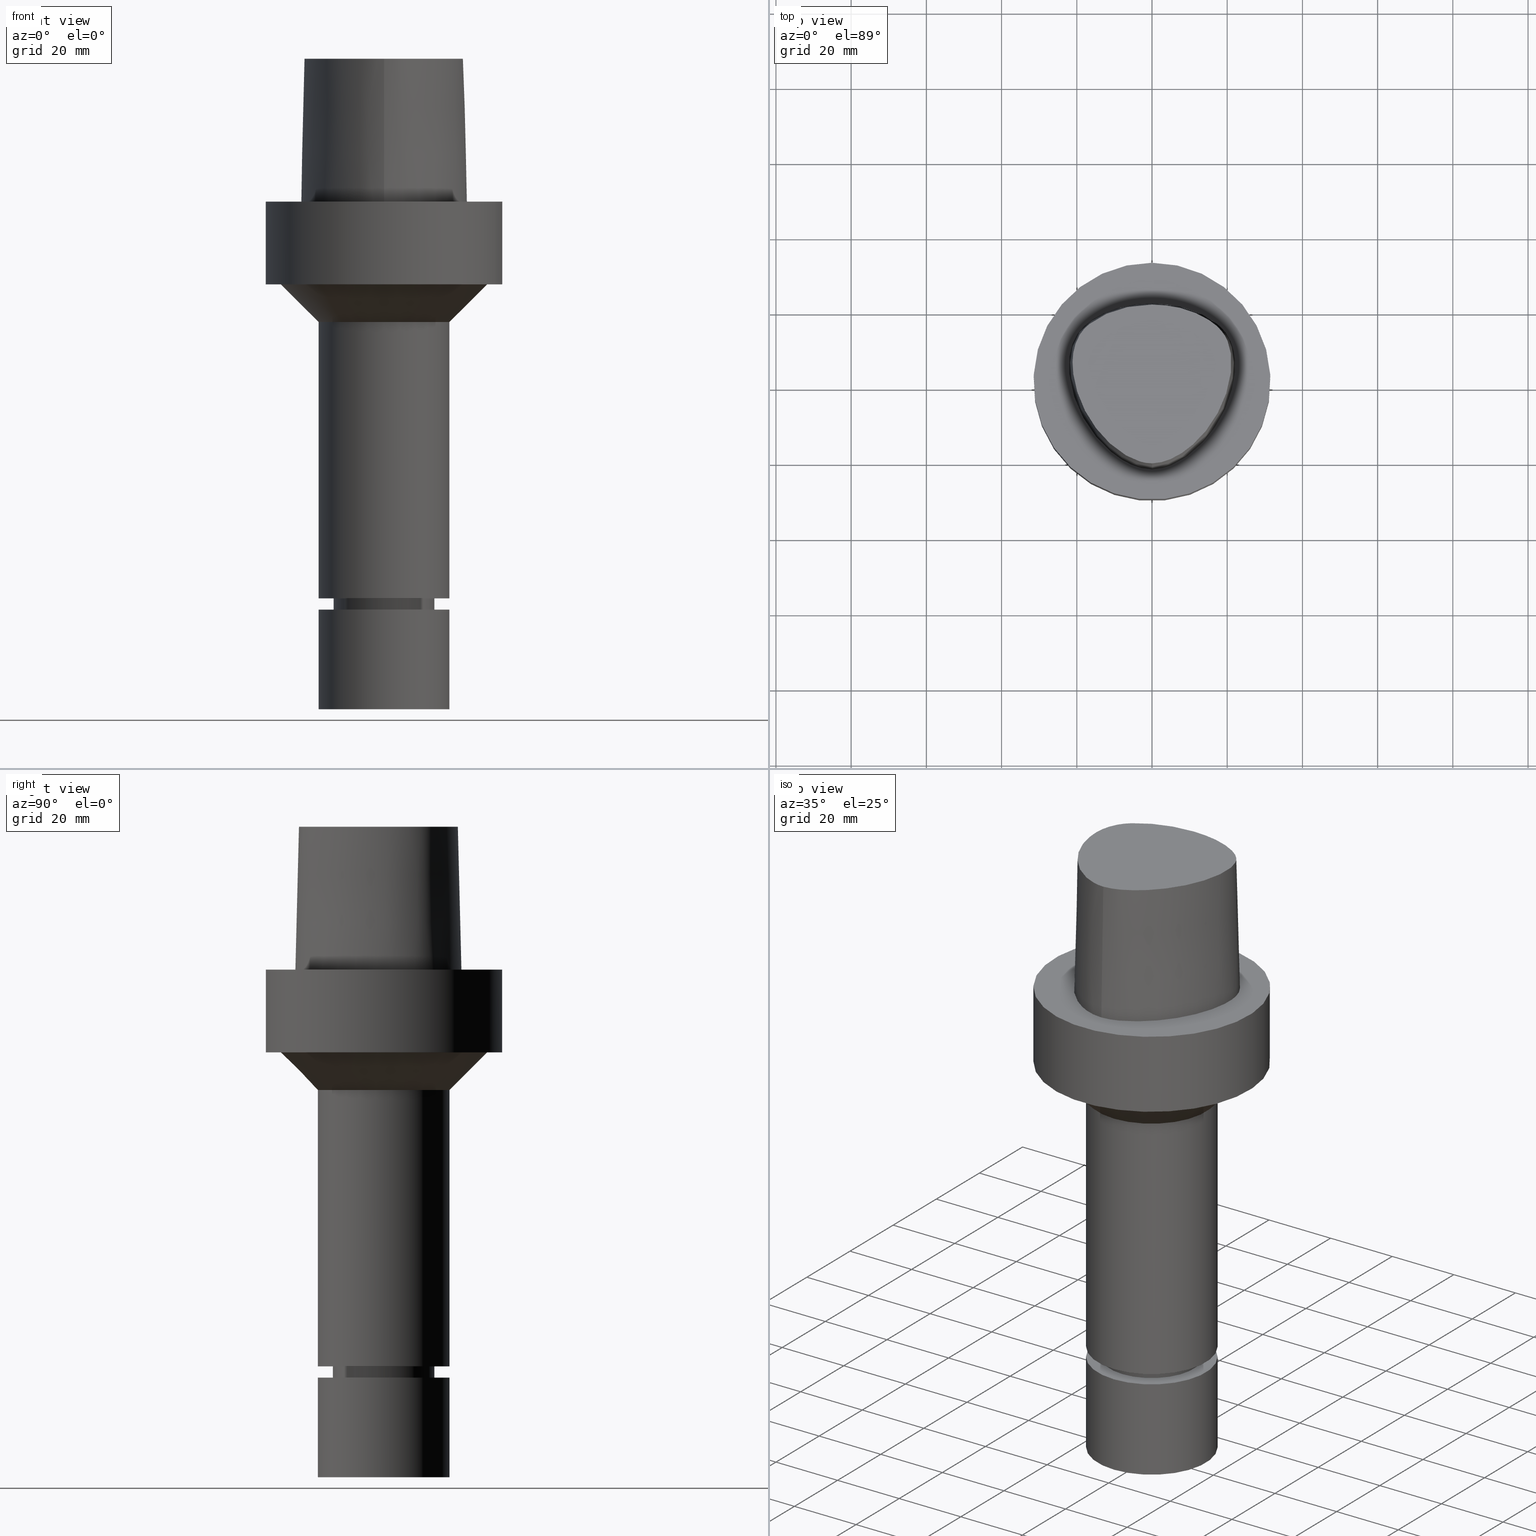
[diagram: canonical four-view strip — front | top / right | iso, engineering-drawing reading convention]
A machine part, canonical four-view strip (front | top / right | iso — engineering-drawing reading convention). The complete STEP part file that produces these views, byte-faithful:
ISO-10303-21;
HEADER;
FILE_DESCRIPTION((''),'1');
FILE_NAME('V:/90_\X2\53D65F9730C730FC30BF\X0\/00_\X2\6DE18DEF30C730FC30BF\X0\/ALL/CAPTO-BKUS\X2\52A05DE556F3\X0\_201801/C6-MEGAER/C6-MEGAER20-135NL.stp','2018-02-01T08:07:44',(''),(''),'Spatial Interop R21 SP3','Kubotek KeyCreator 2011 V10.0.2 (22737)',' ');
FILE_SCHEMA(('automotive_design'));
ENDSEC;
DATA;
#1=MECHANICAL_DESIGN_GEOMETRIC_PRESENTATION_REPRESENTATION(' ',(#14,#15,#16,#17,#18,#19,#20,#21,#22,#23,#24,#25,#26,#27,#28,#29,#30,#31,#32,#33,#34,#35,#36,#37,#38,#39,#40,#41,#42,#43,#44,#45,#46,#47,#48,#49,#50,#51,#52,#53),#10);
#2=PRODUCT_DEFINITION_CONTEXT('',#54,'design');
#3=APPLICATION_PROTOCOL_DEFINITION('INTERNATIONAL STANDARD','automotive_design',1994,#54);
#4=PRODUCT_CATEGORY_RELATIONSHIP('NONE','NONE',#55,#56);
#5=SHAPE_DEFINITION_REPRESENTATION(#57,#58);
#6=PRODUCT_DEFINITION_CONTEXT('',#59,'design');
#7=APPLICATION_PROTOCOL_DEFINITION('INTERNATIONAL STANDARD','automotive_design',1994,#59);
#8=PRODUCT_CATEGORY_RELATIONSHIP('NONE','NONE',#60,#61);
#9=SHAPE_DEFINITION_REPRESENTATION(#62,#63);
#10= (GEOMETRIC_REPRESENTATION_CONTEXT(3)GLOBAL_UNCERTAINTY_ASSIGNED_CONTEXT((#66))GLOBAL_UNIT_ASSIGNED_CONTEXT((#68,#69,#70))REPRESENTATION_CONTEXT('NONE','WORKSPACE'));
#14=STYLED_ITEM('',(#72),#73);
#15=STYLED_ITEM('',(#74,#75),#76);
#16=STYLED_ITEM('',(#77),#78);
#17=STYLED_ITEM('',(#79),#80);
#18=STYLED_ITEM('',(#81),#82);
#19=STYLED_ITEM('',(#83),#84);
#20=STYLED_ITEM('',(#85,#86),#87);
#21=STYLED_ITEM('',(#88,#89),#90);
#22=STYLED_ITEM('',(#91),#92);
#23=STYLED_ITEM('',(#93),#94);
#24=STYLED_ITEM('',(#95),#96);
#25=STYLED_ITEM('',(#97,#98),#99);
#26=STYLED_ITEM('',(#100),#101);
#27=STYLED_ITEM('',(#102,#103),#104);
#28=STYLED_ITEM('',(#105,#106),#107);
#29=STYLED_ITEM('',(#108,#109),#110);
#30=STYLED_ITEM('',(#111,#112),#113);
#31=STYLED_ITEM('',(#114,#115),#116);
#32=STYLED_ITEM('',(#117),#118);
#33=STYLED_ITEM('',(#119,#120),#121);
#34=STYLED_ITEM('',(#122),#123);
#35=STYLED_ITEM('',(#124),#125);
#36=STYLED_ITEM('',(#126),#127);
#37=STYLED_ITEM('',(#128,#129),#130);
#38=STYLED_ITEM('',(#131,#132),#133);
#39=STYLED_ITEM('',(#134,#135),#136);
#40=STYLED_ITEM('',(#137),#138);
#41=STYLED_ITEM('',(#139),#140);
#42=STYLED_ITEM('',(#141,#142),#143);
#43=STYLED_ITEM('',(#144,#145),#146);
#44=STYLED_ITEM('',(#147),#148);
#45=STYLED_ITEM('',(#149,#150),#151);
#46=STYLED_ITEM('',(#152),#153);
#47=STYLED_ITEM('',(#154,#155),#156);
#48=STYLED_ITEM('',(#157,#158),#159);
#49=STYLED_ITEM('',(#160),#161);
#50=STYLED_ITEM('',(#162),#163);
#51=STYLED_ITEM('',(#164,#165),#166);
#52=STYLED_ITEM('',(#167,#168),#169);
#53=STYLED_ITEM('',(#170),#171);
#54=APPLICATION_CONTEXT(' ');
#55=PRODUCT_CATEGORY('part','NONE');
#56=PRODUCT_RELATED_PRODUCT_CATEGORY('detail',' ',(#172));
#57=PRODUCT_DEFINITION_SHAPE('NONE','NONE',#173);
#58=ADVANCED_BREP_SHAPE_REPRESENTATION('Unnamed[1]',(#169,#174),#10);
#59=APPLICATION_CONTEXT(' ');
#60=PRODUCT_CATEGORY('part','NONE');
#61=PRODUCT_RELATED_PRODUCT_CATEGORY('detail',' ',(#175));
#62=PRODUCT_DEFINITION_SHAPE('NONE','NONE',#176);
#63=ADVANCED_BREP_SHAPE_REPRESENTATION('Unnamed[1]',(#136,#177),#10);
#66=UNCERTAINTY_MEASURE_WITH_UNIT(LENGTH_MEASURE(1.0E-006),#68,'','');
#68= (CONVERSION_BASED_UNIT('MILLIMETRE',#180)LENGTH_UNIT()NAMED_UNIT(#183));
#69= (NAMED_UNIT(#185)PLANE_ANGLE_UNIT()SI_UNIT($,.RADIAN.));
#70= (NAMED_UNIT(#185)SOLID_ANGLE_UNIT()SI_UNIT($,.STERADIAN.));
#72=PRESENTATION_STYLE_ASSIGNMENT((#191));
#73=EDGE_CURVE('Unnamed[1]',#192,#193,#194,.T.);
#74=PRESENTATION_STYLE_ASSIGNMENT((#195));
#75=PRESENTATION_STYLE_ASSIGNMENT((#196));
#76=ADVANCED_FACE('Unnamed[1]',(#197),#198,.T.);
#77=PRESENTATION_STYLE_ASSIGNMENT((#199));
#78=EDGE_CURVE('Unnamed[1]',#200,#200,#201,.T.);
#79=PRESENTATION_STYLE_ASSIGNMENT((#202));
#80=EDGE_CURVE('Unnamed[1]',#203,#203,#204,.T.);
#81=PRESENTATION_STYLE_ASSIGNMENT((#205));
#82=EDGE_CURVE('Unnamed[1]',#192,#206,#207,.T.);
#83=PRESENTATION_STYLE_ASSIGNMENT((#208));
#84=EDGE_CURVE('Unnamed[1]',#209,#209,#210,.T.);
#85=PRESENTATION_STYLE_ASSIGNMENT((#211));
#86=PRESENTATION_STYLE_ASSIGNMENT((#212));
#87=ADVANCED_FACE('Unnamed[1]',(#213),#214,.T.);
#88=PRESENTATION_STYLE_ASSIGNMENT((#215));
#89=PRESENTATION_STYLE_ASSIGNMENT((#216));
#90=ADVANCED_FACE('Unnamed[1]',(#217,#218),#219,.T.);
#91=PRESENTATION_STYLE_ASSIGNMENT((#220));
#92=EDGE_CURVE('Unnamed[1]',#221,#192,#222,.T.);
#93=PRESENTATION_STYLE_ASSIGNMENT((#223));
#94=EDGE_CURVE('Unnamed[1]',#206,#193,#224,.T.);
#95=PRESENTATION_STYLE_ASSIGNMENT((#225));
#96=EDGE_CURVE('Unnamed[1]',#226,#226,#227,.T.);
#97=PRESENTATION_STYLE_ASSIGNMENT((#228));
#98=PRESENTATION_STYLE_ASSIGNMENT((#229));
#99=ADVANCED_FACE('Unnamed[1]',(#230,#231),#232,.T.);
#100=PRESENTATION_STYLE_ASSIGNMENT((#233));
#101=EDGE_CURVE('Unnamed[1]',#234,#234,#235,.T.);
#102=PRESENTATION_STYLE_ASSIGNMENT((#236));
#103=PRESENTATION_STYLE_ASSIGNMENT((#237));
#104=ADVANCED_FACE('Unnamed[1]',(#238,#239),#240,.T.);
#105=PRESENTATION_STYLE_ASSIGNMENT((#241));
#106=PRESENTATION_STYLE_ASSIGNMENT((#242));
#107=ADVANCED_FACE('Unnamed[1]',(#243,#244),#245,.T.);
#108=PRESENTATION_STYLE_ASSIGNMENT((#246));
#109=PRESENTATION_STYLE_ASSIGNMENT((#247));
#110=ADVANCED_FACE('Unnamed[1]',(#248),#249,.T.);
#111=PRESENTATION_STYLE_ASSIGNMENT((#250));
#112=PRESENTATION_STYLE_ASSIGNMENT((#251));
#113=ADVANCED_FACE('Unnamed[1]',(#252,#253),#254,.T.);
#114=PRESENTATION_STYLE_ASSIGNMENT((#255));
#115=PRESENTATION_STYLE_ASSIGNMENT((#256));
#116=ADVANCED_FACE('Unnamed[1]',(#257,#258),#259,.T.);
#117=PRESENTATION_STYLE_ASSIGNMENT((#260));
#118=EDGE_CURVE('Unnamed[1]',#261,#261,#262,.T.);
#119=PRESENTATION_STYLE_ASSIGNMENT((#263));
#120=PRESENTATION_STYLE_ASSIGNMENT((#264));
#121=ADVANCED_FACE('Unnamed[1]',(#265,#266),#267,.T.);
#122=PRESENTATION_STYLE_ASSIGNMENT((#268));
#123=EDGE_CURVE('Unnamed[1]',#269,#206,#270,.T.);
#124=PRESENTATION_STYLE_ASSIGNMENT((#271));
#125=EDGE_CURVE('Unnamed[1]',#272,#272,#273,.T.);
#126=PRESENTATION_STYLE_ASSIGNMENT((#274));
#127=EDGE_CURVE('Unnamed[1]',#275,#275,#276,.T.);
#128=PRESENTATION_STYLE_ASSIGNMENT((#277));
#129=PRESENTATION_STYLE_ASSIGNMENT((#278));
#130=ADVANCED_FACE('Unnamed[1]',(#279),#280,.T.);
#131=PRESENTATION_STYLE_ASSIGNMENT((#281));
#132=PRESENTATION_STYLE_ASSIGNMENT((#282));
#133=ADVANCED_FACE('Unnamed[1]',(#283,#284),#285,.T.);
#134=PRESENTATION_STYLE_ASSIGNMENT((#286));
#135=PRESENTATION_STYLE_ASSIGNMENT((#287));
#136=MANIFOLD_SOLID_BREP('Unnamed[1]',#288);
#137=PRESENTATION_STYLE_ASSIGNMENT((#289));
#138=EDGE_CURVE('Unnamed[1]',#290,#290,#291,.T.);
#139=PRESENTATION_STYLE_ASSIGNMENT((#292));
#140=EDGE_CURVE('Unnamed[1]',#293,#293,#294,.T.);
#141=PRESENTATION_STYLE_ASSIGNMENT((#295));
#142=PRESENTATION_STYLE_ASSIGNMENT((#296));
#143=ADVANCED_FACE('Unnamed[1]',(#297),#298,.T.);
#144=PRESENTATION_STYLE_ASSIGNMENT((#299));
#145=PRESENTATION_STYLE_ASSIGNMENT((#300));
#146=ADVANCED_FACE('Unnamed[1]',(#301,#302),#303,.T.);
#147=PRESENTATION_STYLE_ASSIGNMENT((#304));
#148=EDGE_CURVE('Unnamed[1]',#305,#305,#306,.T.);
#149=PRESENTATION_STYLE_ASSIGNMENT((#307));
#150=PRESENTATION_STYLE_ASSIGNMENT((#308));
#151=ADVANCED_FACE('Unnamed[1]',(#309),#310,.T.);
#152=PRESENTATION_STYLE_ASSIGNMENT((#311));
#153=EDGE_CURVE('Unnamed[1]',#192,#221,#312,.T.);
#154=PRESENTATION_STYLE_ASSIGNMENT((#313));
#155=PRESENTATION_STYLE_ASSIGNMENT((#314));
#156=ADVANCED_FACE('Unnamed[1]',(#315,#316),#317,.T.);
#157=PRESENTATION_STYLE_ASSIGNMENT((#318));
#158=PRESENTATION_STYLE_ASSIGNMENT((#319));
#159=ADVANCED_FACE('Unnamed[1]',(#320,#321),#322,.T.);
#160=PRESENTATION_STYLE_ASSIGNMENT((#323));
#161=EDGE_CURVE('Unnamed[1]',#193,#269,#324,.T.);
#162=PRESENTATION_STYLE_ASSIGNMENT((#325));
#163=EDGE_CURVE('Unnamed[1]',#221,#269,#326,.T.);
#164=PRESENTATION_STYLE_ASSIGNMENT((#327));
#165=PRESENTATION_STYLE_ASSIGNMENT((#328));
#166=ADVANCED_FACE('Unnamed[1]',(#329),#330,.T.);
#167=PRESENTATION_STYLE_ASSIGNMENT((#331));
#168=PRESENTATION_STYLE_ASSIGNMENT((#332));
#169=MANIFOLD_SOLID_BREP('Unnamed[1]',#333);
#170=PRESENTATION_STYLE_ASSIGNMENT((#334));
#171=EDGE_CURVE('Unnamed[1]',#335,#335,#336,.T.);
#172=PRODUCT('Unnamed[1]','Unnamed[1]','PART-Unnamed[1]-DESC',(#337));
#173=PRODUCT_DEFINITION('NONE','NONE',#338,#2);
#174=AXIS2_PLACEMENT_3D('',#339,#340,#341);
#175=PRODUCT('Unnamed[1]','Unnamed[1]','PART-Unnamed[1]-DESC',(#342));
#176=PRODUCT_DEFINITION('NONE','NONE',#343,#6);
#177=AXIS2_PLACEMENT_3D('',#344,#345,#346);
#180=LENGTH_MEASURE_WITH_UNIT(LENGTH_MEASURE(1.0),#347);
#183=DIMENSIONAL_EXPONENTS(1.0,0.0,0.0,0.0,0.0,0.0,0.0);
#185=DIMENSIONAL_EXPONENTS(0.0,0.0,0.0,0.0,0.0,0.0,0.0);
#191=CURVE_STYLE('',#348,POSITIVE_LENGTH_MEASURE(1000.0),#349);
#192=VERTEX_POINT('',#350);
#193=VERTEX_POINT('',#351);
#194=LINE('',#352,#353);
#195=SURFACE_STYLE_USAGE(.BOTH.,#354);
#196=CURVE_STYLE('',#355,POSITIVE_LENGTH_MEASURE(1000.0),#356);
#197=FACE_OUTER_BOUND('',#357,.T.);
#198=PLANE('',#358);
#199=CURVE_STYLE('',#359,POSITIVE_LENGTH_MEASURE(1000.0),#360);
#200=VERTEX_POINT('',#361);
#201=CIRCLE('',#362,17.5);
#202=CURVE_STYLE('',#363,POSITIVE_LENGTH_MEASURE(1000.0),#364);
#203=VERTEX_POINT('',#365);
#204=CIRCLE('',#366,27.5000000000006);
#205=CURVE_STYLE('',#367,POSITIVE_LENGTH_MEASURE(1000.0),#368);
#206=VERTEX_POINT('',#369);
#207=LINE('',#370,#371);
#208=CURVE_STYLE('',#372,POSITIVE_LENGTH_MEASURE(1000.0),#373);
#209=VERTEX_POINT('',#374);
#210=CIRCLE('',#375,31.5);
#211=SURFACE_STYLE_USAGE(.BOTH.,#376);
#212=CURVE_STYLE('',#377,POSITIVE_LENGTH_MEASURE(1000.0),#378);
#213=FACE_OUTER_BOUND('',#379,.T.);
#214=PLANE('',#380);
#215=SURFACE_STYLE_USAGE(.BOTH.,#381);
#216=CURVE_STYLE('',#382,POSITIVE_LENGTH_MEASURE(1000.0),#383);
#217=FACE_BOUND('',#384,.T.);
#218=FACE_OUTER_BOUND('',#385,.T.);
#219=PLANE('',#386);
#220=CURVE_STYLE('',#387,POSITIVE_LENGTH_MEASURE(1000.0),#388);
#221=VERTEX_POINT('',#389);
#222=B_SPLINE_CURVE_WITH_KNOTS('',3,(#390,#391,#392,#393,#394,#395,#396,#397,#398,#399,#400,#401,#402,#403,#404,#405),.UNSPECIFIED.,.F.,.F.,(4,1,1,1,1,1,1,1,1,1,1,1,1,4),(6.61513393087476,6.99917207152274,7.48193246986995,7.96289324787093,8.45540287038584,9.10291653679981,9.67129810936083,10.1618749681153,10.6358867802489,11.1080734988593,11.6043706019633,12.09451993853,12.6985979284494,13.2302678617486),.UNSPECIFIED.);
#223=CURVE_STYLE('',#406,POSITIVE_LENGTH_MEASURE(1000.0),#407);
#224=CIRCLE('',#408,0.949936168436318);
#225=CURVE_STYLE('',#409,POSITIVE_LENGTH_MEASURE(1000.0),#410);
#226=VERTEX_POINT('',#411);
#227=CIRCLE('',#412,17.4999999999995);
#228=SURFACE_STYLE_USAGE(.BOTH.,#413);
#229=CURVE_STYLE('',#414,POSITIVE_LENGTH_MEASURE(1000.0),#415);
#230=FACE_BOUND('',#416,.T.);
#231=FACE_BOUND('',#417,.T.);
#232=CYLINDRICAL_SURFACE('',#418,13.4999999999956);
#233=CURVE_STYLE('',#419,POSITIVE_LENGTH_MEASURE(1000.0),#420);
#234=VERTEX_POINT('',#421);
#235=CIRCLE('',#422,31.5);
#236=SURFACE_STYLE_USAGE(.BOTH.,#423);
#237=CURVE_STYLE('',#424,POSITIVE_LENGTH_MEASURE(1000.0),#425);
#238=FACE_BOUND('',#426,.T.);
#239=FACE_BOUND('',#427,.T.);
#240=CYLINDRICAL_SURFACE('',#428,12.4999999999999);
#241=SURFACE_STYLE_USAGE(.BOTH.,#429);
#242=CURVE_STYLE('',#430,POSITIVE_LENGTH_MEASURE(1000.0),#431);
#243=FACE_BOUND('',#432,.T.);
#244=FACE_BOUND('',#433,.T.);
#245=CYLINDRICAL_SURFACE('',#434,31.5);
#246=SURFACE_STYLE_USAGE(.BOTH.,#435);
#247=CURVE_STYLE('',#436,POSITIVE_LENGTH_MEASURE(1000.0),#437);
#248=FACE_OUTER_BOUND('',#438,.T.);
#249=B_SPLINE_SURFACE_WITH_KNOTS('',3,3,((#439,#440,#441,#442),(#443,#444,#445,#446),(#447,#448,#449,#450),(#451,#452,#453,#454),(#455,#456,#457,#458),(#459,#460,#461,#462),(#463,#464,#465,#466),(#467,#468,#469,#470),(#471,#472,#473,#474),(#475,#476,#477,#478),(#479,#480,#481,#482),(#483,#484,#485,#486),(#487,#488,#489,#490),(#491,#492,#493,#494),(#495,#496,#497,#498),(#499,#500,#501,#502),(#503,#504,#505,#506)),.UNSPECIFIED.,.F.,.F.,.F.,(4,1,1,1,1,1,1,1,1,1,1,1,1,1,4),(4,4),(-13.2302678617486,-12.816821991069,-12.4033761203893,-11.9899302497097,-11.57648437903,-11.1630385083504,-10.9563155730106,-10.7495926376707,-10.3361467669911,-9.92270089631145,-9.09580915495216,-8.26891741359287,-7.44202567223358,-7.02857980155394,-6.6151339308743),(-3.8,0.0),.UNSPECIFIED.);
#250=SURFACE_STYLE_USAGE(.BOTH.,#507);
#251=CURVE_STYLE('',#508,POSITIVE_LENGTH_MEASURE(1000.0),#509);
#252=FACE_BOUND('',#510,.T.);
#253=FACE_BOUND('',#511,.T.);
#254=CONICAL_SURFACE('',#512,11.9499999999988,0.523598775598649);
#255=SURFACE_STYLE_USAGE(.BOTH.,#513);
#256=CURVE_STYLE('',#514,POSITIVE_LENGTH_MEASURE(1000.0),#515);
#257=FACE_BOUND('',#516,.T.);
#258=FACE_BOUND('',#517,.T.);
#259=CONICAL_SURFACE('',#518,13.0000000000002,1.04719755119489);
#260=CURVE_STYLE('',#519,POSITIVE_LENGTH_MEASURE(1000.0),#520);
#261=VERTEX_POINT('',#521);
#262=CIRCLE('',#522,17.4999999999999);
#263=SURFACE_STYLE_USAGE(.BOTH.,#523);
#264=CURVE_STYLE('',#524,POSITIVE_LENGTH_MEASURE(1000.0),#525);
#265=FACE_BOUND('',#526,.T.);
#266=FACE_OUTER_BOUND('',#527,.T.);
#267=PLANE('',#528);
#268=CURVE_STYLE('',#529,POSITIVE_LENGTH_MEASURE(1000.0),#530);
#269=VERTEX_POINT('',#531);
#270=B_SPLINE_CURVE_WITH_KNOTS('',3,(#532,#533,#534,#535,#536,#537,#538,#539,#540,#541,#542,#543,#544,#545,#546,#547,#548,#549),.UNSPECIFIED.,.F.,.F.,(4,1,1,1,1,1,1,1,1,2,1,1,1,1,4),(-6.6151339308743,-6.20168806019465,-5.78824218951501,-5.37479631883537,-4.96135044815572,-4.13445870679644,-3.30756696543715,-2.89412109475751,-2.48067522407786,-2.06722935339822,-1.65378348271857,-1.24033761203893,-0.826891741359287,-0.413445870679644,0.0),.UNSPECIFIED.);
#271=CURVE_STYLE('',#550,POSITIVE_LENGTH_MEASURE(1000.0),#551);
#272=VERTEX_POINT('',#552);
#273=CIRCLE('',#553,17.5);
#274=CURVE_STYLE('',#554,POSITIVE_LENGTH_MEASURE(1000.0),#555);
#275=VERTEX_POINT('',#556);
#276=CIRCLE('',#557,12.4999999999999);
#277=SURFACE_STYLE_USAGE(.BOTH.,#558);
#278=CURVE_STYLE('',#559,POSITIVE_LENGTH_MEASURE(1000.0),#560);
#279=FACE_OUTER_BOUND('',#561,.T.);
#280=CONICAL_SURFACE('',#562,1.0,0.0249931148600041);
#281=SURFACE_STYLE_USAGE(.BOTH.,#563);
#282=CURVE_STYLE('',#564,POSITIVE_LENGTH_MEASURE(1000.0),#565);
#283=FACE_BOUND('',#566,.T.);
#284=FACE_OUTER_BOUND('',#567,.T.);
#285=PLANE('',#568);
#286=SURFACE_STYLE_USAGE(.BOTH.,#569);
#287=CURVE_STYLE('',#570,POSITIVE_LENGTH_MEASURE(1000.0),#571);
#288=CLOSED_SHELL('',(#76,#87,#159));
#289=CURVE_STYLE('',#572,POSITIVE_LENGTH_MEASURE(1000.0),#573);
#290=VERTEX_POINT('',#574);
#291=CIRCLE('',#575,13.4999999999908);
#292=CURVE_STYLE('',#576,POSITIVE_LENGTH_MEASURE(1000.0),#577);
#293=VERTEX_POINT('',#578);
#294=CIRCLE('',#579,12.4999999999998);
#295=SURFACE_STYLE_USAGE(.BOTH.,#580);
#296=CURVE_STYLE('',#581,POSITIVE_LENGTH_MEASURE(1000.0),#582);
#297=FACE_OUTER_BOUND('',#583,.T.);
#298=B_SPLINE_SURFACE_WITH_KNOTS('',3,3,((#584,#585,#586,#587),(#588,#589,#590,#591),(#592,#593,#594,#595),(#596,#597,#598,#599),(#600,#601,#602,#603),(#604,#605,#606,#607),(#608,#609,#610,#611),(#612,#613,#614,#615),(#616,#617,#618,#619),(#620,#621,#622,#623),(#624,#625,#626,#627),(#628,#629,#630,#631),(#632,#633,#634,#635),(#636,#637,#638,#639),(#640,#641,#642,#643),(#644,#645,#646,#647),(#648,#649,#650,#651),(#652,#653,#654,#655)),.UNSPECIFIED.,.F.,.F.,.F.,(4,1,1,1,1,1,1,1,1,2,1,1,1,1,4),(4,4),(-6.6151339308743,-6.20168806019465,-5.78824218951501,-5.37479631883537,-4.96135044815572,-4.13445870679644,-3.30756696543715,-2.89412109475751,-2.48067522407786,-2.06722935339822,-1.65378348271857,-1.24033761203893,-0.826891741359287,-0.413445870679644,0.0),(-3.8,0.0),.UNSPECIFIED.);
#299=SURFACE_STYLE_USAGE(.BOTH.,#656);
#300=CURVE_STYLE('',#657,POSITIVE_LENGTH_MEASURE(1000.0),#658);
#301=FACE_BOUND('',#659,.T.);
#302=FACE_BOUND('',#660,.T.);
#303=CYLINDRICAL_SURFACE('',#661,17.4999999999997);
#304=CURVE_STYLE('',#662,POSITIVE_LENGTH_MEASURE(1000.0),#663);
#305=VERTEX_POINT('',#664);
#306=CIRCLE('',#665,13.5000000000005);
#307=SURFACE_STYLE_USAGE(.BOTH.,#666);
#308=CURVE_STYLE('',#667,POSITIVE_LENGTH_MEASURE(1000.0),#668);
#309=FACE_OUTER_BOUND('',#669,.T.);
#310=PLANE('',#670);
#311=CURVE_STYLE('',#671,POSITIVE_LENGTH_MEASURE(1000.0),#672);
#312=B_SPLINE_CURVE_WITH_KNOTS('',3,(#673,#674,#675,#676,#677,#678,#679,#680,#681,#682,#683,#684,#685,#686,#687,#688),.UNSPECIFIED.,.F.,.F.,(4,1,1,1,1,1,1,1,1,1,1,1,1,4),(0.0,0.447924670568964,0.9388024242536,1.50591409090711,2.07314340012323,2.72424957442464,3.2253501842849,3.80982102049476,4.34867996267067,4.85900173381144,5.37972031856977,6.03459825488646,6.61113557741484,6.61513393087395),.UNSPECIFIED.);
#313=SURFACE_STYLE_USAGE(.BOTH.,#689);
#314=CURVE_STYLE('',#690,POSITIVE_LENGTH_MEASURE(1000.0),#691);
#315=FACE_BOUND('',#692,.T.);
#316=FACE_BOUND('',#693,.T.);
#317=CONICAL_SURFACE('',#694,22.5000000000003,0.785398163397487);
#318=SURFACE_STYLE_USAGE(.BOTH.,#695);
#319=CURVE_STYLE('',#696,POSITIVE_LENGTH_MEASURE(1000.0),#697);
#320=FACE_BOUND('',#698,.T.);
#321=FACE_BOUND('',#699,.T.);
#322=CYLINDRICAL_SURFACE('',#700,17.5);
#323=CURVE_STYLE('',#701,POSITIVE_LENGTH_MEASURE(1000.0),#702);
#324=B_SPLINE_CURVE_WITH_KNOTS('',3,(#703,#704,#705,#706,#707,#708,#709,#710,#711,#712,#713,#714,#715,#716,#717,#718,#719),.UNSPECIFIED.,.F.,.F.,(4,1,1,1,1,1,1,1,1,1,1,1,1,1,4),(-13.2302678617486,-12.816821991069,-12.4033761203893,-11.9899302497097,-11.57648437903,-11.1630385083504,-10.9563155730106,-10.7495926376707,-10.3361467669911,-9.92270089631145,-9.09580915495216,-8.26891741359287,-7.44202567223358,-7.02857980155394,-6.6151339308743),.UNSPECIFIED.);
#325=CURVE_STYLE('',#720,POSITIVE_LENGTH_MEASURE(1000.0),#721);
#326=LINE('',#722,#723);
#327=SURFACE_STYLE_USAGE(.BOTH.,#724);
#328=CURVE_STYLE('',#725,POSITIVE_LENGTH_MEASURE(1000.0),#726);
#329=FACE_OUTER_BOUND('',#727,.T.);
#330=PLANE('',#728);
#331=SURFACE_STYLE_USAGE(.BOTH.,#729);
#332=CURVE_STYLE('',#730,POSITIVE_LENGTH_MEASURE(1000.0),#731);
#333=CLOSED_SHELL('',(#110,#143,#130,#151,#90,#107,#133,#156,#146,#121,#99,#116,#104,#113,#166));
#334=CURVE_STYLE('',#732,POSITIVE_LENGTH_MEASURE(1000.0),#733);
#335=VERTEX_POINT('',#734);
#336=CIRCLE('',#735,11.3999999999978);
#337=PRODUCT_CONTEXT('',#54,'mechanical');
#338=PRODUCT_DEFINITION_FORMATION_WITH_SPECIFIED_SOURCE(' ','NONE',#172,.NOT_KNOWN.);
#339=CARTESIAN_POINT('',(0.0,0.0,0.0));
#340=DIRECTION('',(0.0,0.0,1.0));
#341=DIRECTION('',(1.0,0.0,0.0));
#342=PRODUCT_CONTEXT('',#59,'mechanical');
#343=PRODUCT_DEFINITION_FORMATION_WITH_SPECIFIED_SOURCE(' ','NONE',#175,.NOT_KNOWN.);
#344=CARTESIAN_POINT('',(0.0,0.0,0.0));
#345=DIRECTION('',(0.0,0.0,1.0));
#346=DIRECTION('',(1.0,0.0,0.0));
#347= (NAMED_UNIT(#183)LENGTH_UNIT()SI_UNIT(.MILLI.,.METRE.));
#348=DRAUGHTING_PRE_DEFINED_CURVE_FONT('continuous');
#349=COLOUR_RGB('',0.0,1.0,0.0);
#350=CARTESIAN_POINT('',(-0.001218547003662,19.7276821925089,38.0));
#351=CARTESIAN_POINT('',(0.044682985379347,20.6765087343109,1.61778115328528E-031));
#352=CARTESIAN_POINT('',(-0.001218547003662,19.7276821925089,38.0));
#353=VECTOR('',#737,38.0118715503078);
#354=SURFACE_SIDE_STYLE('',(#738));
#355=DRAUGHTING_PRE_DEFINED_CURVE_FONT('continuous');
#356=COLOUR_RGB('',0.0,1.0,0.0);
#357=EDGE_LOOP('',(#739));
#358=AXIS2_PLACEMENT_3D('',#740,#741,#742);
#359=DRAUGHTING_PRE_DEFINED_CURVE_FONT('continuous');
#360=COLOUR_RGB('',0.0,1.0,0.0);
#361=CARTESIAN_POINT('',(8.26636589424462E-015,17.5,-135.0));
#362=AXIS2_PLACEMENT_3D('',#743,#744,#745);
#363=DRAUGHTING_PRE_DEFINED_CURVE_FONT('continuous');
#364=COLOUR_RGB('',0.0,1.0,0.0);
#365=CARTESIAN_POINT('',(1.34711147906211E-015,27.5000000000006,-22.0000000000003));
#366=AXIS2_PLACEMENT_3D('',#746,#747,#748);
#367=DRAUGHTING_PRE_DEFINED_CURVE_FONT('continuous');
#368=COLOUR_RGB('',0.0,1.0,0.0);
#369=CARTESIAN_POINT('',(-0.045171994691285,20.6766009553285,1.6755590516169E-031));
#370=CARTESIAN_POINT('',(-0.001218547003662,19.7276821925089,38.0));
#371=VECTOR('',#749,38.0118715498723);
#372=DRAUGHTING_PRE_DEFINED_CURVE_FONT('continuous');
#373=COLOUR_RGB('',0.0,1.0,0.0);
#374=CARTESIAN_POINT('',(1.34711147906212E-015,31.5,-22.0000000000006));
#375=AXIS2_PLACEMENT_3D('',#750,#751,#752);
#376=SURFACE_SIDE_STYLE('',(#753));
#377=DRAUGHTING_PRE_DEFINED_CURVE_FONT('continuous');
#378=COLOUR_RGB('',0.0,1.0,0.0);
#379=EDGE_LOOP('',(#754));
#380=AXIS2_PLACEMENT_3D('',#755,#756,#757);
#381=SURFACE_SIDE_STYLE('',(#758));
#382=DRAUGHTING_PRE_DEFINED_CURVE_FONT('continuous');
#383=COLOUR_RGB('',0.0,1.0,0.0);
#384=EDGE_LOOP('',(#759,#760,#761));
#385=EDGE_LOOP('',(#762));
#386=AXIS2_PLACEMENT_3D('',#763,#764,#765);
#387=DRAUGHTING_PRE_DEFINED_CURVE_FONT('continuous');
#388=COLOUR_RGB('',0.0,1.0,0.0);
#389=CARTESIAN_POINT('',(0.038736923393866,-22.5191997536361,38.0));
#390=CARTESIAN_POINT('',(0.038736923394311,-22.519199753636,38.0));
#391=CARTESIAN_POINT('',(1.31742058183662,-22.512662269405,38.0));
#392=CARTESIAN_POINT('',(4.2093773447498,-21.9116226439989,38.0));
#393=CARTESIAN_POINT('',(8.20895504542113,-19.7798683845067,38.0));
#394=CARTESIAN_POINT('',(11.9784633234593,-16.681663904162,38.0));
#395=CARTESIAN_POINT('',(15.5308821579362,-12.5807487594113,38.0));
#396=CARTESIAN_POINT('',(18.4566248438667,-7.64932246015528,38.0));
#397=CARTESIAN_POINT('',(20.4036090752029,-2.27012499825289,38.0));
#398=CARTESIAN_POINT('',(21.2357187429189,2.79891401173156,38.0));
#399=CARTESIAN_POINT('',(21.0811206267748,7.62543090736657,38.0));
#400=CARTESIAN_POINT('',(19.3383577336563,12.2772250726194,38.0));
#401=CARTESIAN_POINT('',(15.5796322014404,15.5799672120682,38.0));
#402=CARTESIAN_POINT('',(10.8392956074438,17.9834601687347,38.0));
#403=CARTESIAN_POINT('',(5.56068045850571,19.4586143858472,38.0));
#404=CARTESIAN_POINT('',(1.77223893711014,19.6418877095654,38.0));
#405=CARTESIAN_POINT('',(-0.001218367817519,19.7276822012873,38.0));
#406=DRAUGHTING_PRE_DEFINED_CURVE_FONT('continuous');
#407=COLOUR_RGB('',0.0,1.0,0.0);
#408=AXIS2_PLACEMENT_3D('',#766,#767,#768);
#409=DRAUGHTING_PRE_DEFINED_CURVE_FONT('continuous');
#410=COLOUR_RGB('',0.0,1.0,0.0);
#411=CARTESIAN_POINT('',(6.46001186550228E-015,17.4999999999996,-105.5));
#412=AXIS2_PLACEMENT_3D('',#769,#770,#771);
#413=SURFACE_SIDE_STYLE('',(#772));
#414=DRAUGHTING_PRE_DEFINED_CURVE_FONT('continuous');
#415=COLOUR_RGB('',0.0,1.0,0.0);
#416=EDGE_LOOP('',(#773));
#417=EDGE_LOOP('',(#774));
#418=AXIS2_PLACEMENT_3D('',#775,#776,#777);
#419=DRAUGHTING_PRE_DEFINED_CURVE_FONT('continuous');
#420=COLOUR_RGB('',0.0,1.0,0.0);
#421=CARTESIAN_POINT('',(-3.88267476788467E-031,31.5,3.85763741731416E-015));
#422=AXIS2_PLACEMENT_3D('',#778,#779,#780);
#423=SURFACE_SIDE_STYLE('',(#781));
#424=DRAUGHTING_PRE_DEFINED_CURVE_FONT('continuous');
#425=COLOUR_RGB('',0.0,1.0,0.0);
#426=EDGE_LOOP('',(#782));
#427=EDGE_LOOP('',(#783));
#428=AXIS2_PLACEMENT_3D('',#784,#785,#786);
#429=SURFACE_SIDE_STYLE('',(#787));
#430=DRAUGHTING_PRE_DEFINED_CURVE_FONT('continuous');
#431=COLOUR_RGB('',0.0,1.0,0.0);
#432=EDGE_LOOP('',(#788));
#433=EDGE_LOOP('',(#789));
#434=AXIS2_PLACEMENT_3D('',#790,#791,#792);
#435=SURFACE_SIDE_STYLE('',(#793));
#436=DRAUGHTING_PRE_DEFINED_CURVE_FONT('continuous');
#437=COLOUR_RGB('',0.0,1.0,0.0);
#438=EDGE_LOOP('',(#794,#795,#796,#797));
#439=CARTESIAN_POINT('',(-0.001218367817519,19.7276822012873,38.0));
#440=CARTESIAN_POINT('',(0.014082083248157,20.0439577123075,25.3333333333066));
#441=CARTESIAN_POINT('',(0.029382534313671,20.3602332232908,12.6666666666934));
#442=CARTESIAN_POINT('',(0.044682985379347,20.6765087343109,1.61778115328528E-031));
#443=CARTESIAN_POINT('',(1.37788651195108,19.6609652834875,38.0));
#444=CARTESIAN_POINT('',(1.3931885827258,19.9772407169847,25.3333333333066));
#445=CARTESIAN_POINT('',(1.40849065356095,20.2935162254648,12.6666666666934));
#446=CARTESIAN_POINT('',(1.42379272427753,20.6097915814392,8.62816615085482E-032));
#447=CARTESIAN_POINT('',(4.135446440878,19.5347778787784,38.0));
#448=CARTESIAN_POINT('',(4.16466278851883,19.8511031866125,25.3333333333066));
#449=CARTESIAN_POINT('',(4.1938791526746,20.1674284644204,12.6666666666934));
#450=CARTESIAN_POINT('',(4.2230955003445,20.4837538303966,1.4791141972894E-031));
#451=CARTESIAN_POINT('',(8.213607363795,18.7706026638736,38.0));
#452=CARTESIAN_POINT('',(8.29980745008421,19.0767495109635,25.3333333333066));
#453=CARTESIAN_POINT('',(8.38600751285747,19.3828964329996,12.6666666666934));
#454=CARTESIAN_POINT('',(8.47220762821777,19.6890432607088,9.86076131526265E-032));
#455=CARTESIAN_POINT('',(12.1316338645671,17.3698624840857,38.0));
#456=CARTESIAN_POINT('',(12.2591308270381,17.6610739397708,25.3333333333066));
#457=CARTESIAN_POINT('',(12.3866278083543,17.9522853923553,12.6666666666934));
#458=CARTESIAN_POINT('',(12.5141247708253,18.2434968480404,0.0));
#459=CARTESIAN_POINT('',(15.7706546153679,15.3789501349612,38.0));
#460=CARTESIAN_POINT('',(15.9483905900895,15.6437731794811,25.3333333333066));
#461=CARTESIAN_POINT('',(16.1261265513272,15.9085961736944,12.6666666666934));
#462=CARTESIAN_POINT('',(16.3038624872874,16.1734192182143,1.97215226305253E-031));
#463=CARTESIAN_POINT('',(18.4265894256284,13.0570022172893,38.0));
#464=CARTESIAN_POINT('',(18.6659567517146,13.2725589420689,25.3333333333066));
#465=CARTESIAN_POINT('',(18.9053240921419,13.4881156488541,12.6666666666934));
#466=CARTESIAN_POINT('',(19.1446913988473,13.7036723639434,-1.97215226305253E-031));
#467=CARTESIAN_POINT('',(19.8679958653038,10.6923771981998,38.0));
#468=CARTESIAN_POINT('',(20.1559937048299,10.8287388264873,25.3333333333066));
#469=CARTESIAN_POINT('',(20.4439915656177,10.965100461641,12.6666666666934));
#470=CARTESIAN_POINT('',(20.7319894342149,11.1014620996188,0.0));
#471=CARTESIAN_POINT('',(20.8470867582337,8.07149548576131,38.0));
#472=CARTESIAN_POINT('',(21.1591164072431,8.14132775555392,25.3333333333066));
#473=CARTESIAN_POINT('',(21.4711459821861,8.21116003697855,12.6666666666934));
#474=CARTESIAN_POINT('',(21.7831756505763,8.28099229708081,-1.97215226305253E-031));
#475=CARTESIAN_POINT('',(21.2693244256982,4.61157245650171,38.0));
#476=CARTESIAN_POINT('',(21.5881576801997,4.6105997689982,25.3333333333066));
#477=CARTESIAN_POINT('',(21.9069908544037,4.60962709346857,12.6666666666934));
#478=CARTESIAN_POINT('',(22.2258240701438,4.60865440596506,0.0));
#479=CARTESIAN_POINT('',(20.8071610855575,-0.912828649855193,38.0));
#480=CARTESIAN_POINT('',(21.119311671178,-0.979640884839481,25.3333333333066));
#481=CARTESIAN_POINT('',(21.4314624224461,-1.04645306732201,12.6666666666934));
#482=CARTESIAN_POINT('',(21.7436130080666,-1.11326526354485,0.0));
#483=CARTESIAN_POINT('',(18.6841935581315,-7.54428794252837,38.0));
#484=CARTESIAN_POINT('',(18.9734452551861,-7.6809665891091,25.3333333333066));
#485=CARTESIAN_POINT('',(19.2626970689956,-7.81764505382656,12.6666666666934));
#486=CARTESIAN_POINT('',(19.5519487660502,-7.95432366164584,0.0));
#487=CARTESIAN_POINT('',(14.2175552814,-14.5971504342323,38.0));
#488=CARTESIAN_POINT('',(14.4641757465198,-14.8010930946929,25.3333333333066));
#489=CARTESIAN_POINT('',(14.710796247264,-15.0050359737917,12.6666666666934));
#490=CARTESIAN_POINT('',(14.9574167123838,-15.2089785567293,0.0));
#491=CARTESIAN_POINT('',(9.0844808732933,-19.3179298129689,38.0));
#492=CARTESIAN_POINT('',(9.27912152349017,-19.572866915557,25.3333333333066));
#493=CARTESIAN_POINT('',(9.47376218971294,-19.827804295621,12.6666666666934));
#494=CARTESIAN_POINT('',(9.66840283021945,-20.0827414369705,-9.86076131526265E-032));
#495=CARTESIAN_POINT('',(4.17112919194182,-21.8987568152736,38.0));
#496=CARTESIAN_POINT('',(4.28618163483998,-22.1973837173649,25.3333333333066));
#497=CARTESIAN_POINT('',(4.40123406239433,-22.4960105163661,12.6666666666934));
#498=CARTESIAN_POINT('',(4.51628650521788,-22.7946374572188,-9.86076131526265E-032));
#499=CARTESIAN_POINT('',(1.41533654381097,-22.5120888467812,38.0));
#500=CARTESIAN_POINT('',(1.46311520162011,-22.8284916374445,25.3333333333066));
#501=CARTESIAN_POINT('',(1.51089385942236,-23.144894486341,12.6666666666934));
#502=CARTESIAN_POINT('',(1.55867251738073,-23.4612972770043,-1.23259516440783E-032));
#503=CARTESIAN_POINT('',(0.038736923393866,-22.5191997536361,38.0));
#504=CARTESIAN_POINT('',(0.04035580478973,-22.8358410047159,25.3333333333066));
#505=CARTESIAN_POINT('',(0.041974686185626,-23.1524822558133,12.6666666666934));
#506=CARTESIAN_POINT('',(0.04359356758149,-23.4691235068931,7.78075697532443E-032));
#507=SURFACE_SIDE_STYLE('',(#798));
#508=DRAUGHTING_PRE_DEFINED_CURVE_FONT('continuous');
#509=COLOUR_RGB('',0.0,1.0,0.0);
#510=EDGE_LOOP('',(#799));
#511=EDGE_LOOP('',(#800));
#512=AXIS2_PLACEMENT_3D('',#801,#802,#803);
#513=SURFACE_SIDE_STYLE('',(#804));
#514=DRAUGHTING_PRE_DEFINED_CURVE_FONT('continuous');
#515=COLOUR_RGB('',0.0,1.0,0.0);
#516=EDGE_LOOP('',(#805));
#517=EDGE_LOOP('',(#806));
#518=AXIS2_PLACEMENT_3D('',#807,#808,#809);
#519=DRAUGHTING_PRE_DEFINED_CURVE_FONT('continuous');
#520=COLOUR_RGB('',0.0,1.0,0.0);
#521=CARTESIAN_POINT('',(1.95943487863578E-015,17.4999999999999,-32.0000000000002));
#522=AXIS2_PLACEMENT_3D('',#810,#811,#812);
#523=SURFACE_SIDE_STYLE('',(#813));
#524=DRAUGHTING_PRE_DEFINED_CURVE_FONT('continuous');
#525=COLOUR_RGB('',0.0,1.0,0.0);
#526=EDGE_LOOP('',(#814));
#527=EDGE_LOOP('',(#815));
#528=AXIS2_PLACEMENT_3D('',#816,#817,#818);
#529=DRAUGHTING_PRE_DEFINED_CURVE_FONT('continuous');
#530=COLOUR_RGB('',0.0,1.0,0.0);
#531=CARTESIAN_POINT('',(0.04359356758149,-23.4691235068931,7.78075697532443E-032));
#532=CARTESIAN_POINT('',(0.04359356758149,-23.4691235068931,7.78075697532443E-032));
#533=CARTESIAN_POINT('',(-1.4714994713963,-23.4767895315797,2.46519032881566E-032));
#534=CARTESIAN_POINT('',(-4.43923476371401,-22.821149804767,-4.93038065763132E-032));
#535=CARTESIAN_POINT('',(-8.35043230079961,-20.8000751253325,-9.86076131526265E-032));
#536=CARTESIAN_POINT('',(-11.744900222602,-18.1556117874078,-1.97215226305253E-031));
#537=CARTESIAN_POINT('',(-15.6989602501314,-14.0406306929147,-1.97215226305253E-031));
#538=CARTESIAN_POINT('',(-19.5352875070682,-8.00624990770787,1.97215226305253E-031));
#539=CARTESIAN_POINT('',(-21.7205626190491,-1.16081708945282,0.0));
#540=CARTESIAN_POINT('',(-22.2486616783342,4.54965558738736,0.0));
#541=CARTESIAN_POINT('',(-21.6646421256468,9.00229539124618,0.0));
#542=CARTESIAN_POINT('',(-20.3945635471922,11.7780544971003,0.0));
#543=CARTESIAN_POINT('',(-18.5925528034471,14.1980602922581,0.0));
#544=CARTESIAN_POINT('',(-16.3226584122258,16.1777748720707,0.0));
#545=CARTESIAN_POINT('',(-12.5076407874579,18.2524201541303,9.86076131526265E-032));
#546=CARTESIAN_POINT('',(-8.46776192107786,19.679114377952,9.86076131526265E-032));
#547=CARTESIAN_POINT('',(-4.23043497193604,20.487781597334,1.97215226305253E-031));
#548=CARTESIAN_POINT('',(-1.42313094248379,20.6127745766442,1.10933564796705E-031));
#549=CARTESIAN_POINT('',(-0.045171994691285,20.6766009553285,1.6755590516169E-031));
#550=DRAUGHTING_PRE_DEFINED_CURVE_FONT('continuous');
#551=COLOUR_RGB('',0.0,1.0,0.0);
#552=CARTESIAN_POINT('',(6.64370981970575E-015,17.5,-108.500015258789));
#553=AXIS2_PLACEMENT_3D('',#819,#820,#821);
#554=DRAUGHTING_PRE_DEFINED_CURVE_FONT('continuous');
#555=COLOUR_RGB('',0.0,1.0,0.0);
#556=CARTESIAN_POINT('',(6.85187894896067E-015,12.4999999999999,-111.899675134597));
#557=AXIS2_PLACEMENT_3D('',#822,#823,#824);
#558=SURFACE_SIDE_STYLE('',(#825));
#559=DRAUGHTING_PRE_DEFINED_CURVE_FONT('continuous');
#560=COLOUR_RGB('',0.0,1.0,0.0);
#561=EDGE_LOOP('',(#826,#827,#828));
#562=AXIS2_PLACEMENT_3D('',#829,#830,#831);
#563=SURFACE_SIDE_STYLE('',(#832));
#564=DRAUGHTING_PRE_DEFINED_CURVE_FONT('continuous');
#565=COLOUR_RGB('',0.0,1.0,0.0);
#566=EDGE_LOOP('',(#833));
#567=EDGE_LOOP('',(#834));
#568=AXIS2_PLACEMENT_3D('',#835,#836,#837);
#569=SURFACE_SIDE_STYLE('',(#838));
#570=DRAUGHTING_PRE_DEFINED_CURVE_FONT('continuous');
#571=COLOUR_RGB('',0.0,1.0,0.0);
#572=DRAUGHTING_PRE_DEFINED_CURVE_FONT('continuous');
#573=COLOUR_RGB('',0.0,1.0,0.0);
#574=CARTESIAN_POINT('',(6.46001186550228E-015,13.4999999999908,-105.5));
#575=AXIS2_PLACEMENT_3D('',#839,#840,#841);
#576=DRAUGHTING_PRE_DEFINED_CURVE_FONT('continuous');
#577=COLOUR_RGB('',0.0,1.0,0.0);
#578=CARTESIAN_POINT('',(7.54962568640259E-015,12.4999999999998,-123.294744111673));
#579=AXIS2_PLACEMENT_3D('',#842,#843,#844);
#580=SURFACE_SIDE_STYLE('',(#845));
#581=DRAUGHTING_PRE_DEFINED_CURVE_FONT('continuous');
#582=COLOUR_RGB('',0.0,1.0,0.0);
#583=EDGE_LOOP('',(#846,#847,#848,#849));
#584=CARTESIAN_POINT('',(0.038736923393866,-22.5191997536361,38.0));
#585=CARTESIAN_POINT('',(0.04035580478973,-22.8358410047159,25.3333333333066));
#586=CARTESIAN_POINT('',(0.041974686185626,-23.1524822558133,12.6666666666934));
#587=CARTESIAN_POINT('',(0.04359356758149,-23.4691235068931,7.78075697532443E-032));
#588=CARTESIAN_POINT('',(-1.33786123484754,-22.5261650259856,38.0));
#589=CARTESIAN_POINT('',(-1.38240731367927,-22.8430399310626,25.3333333333066));
#590=CARTESIAN_POINT('',(-1.42695339249092,-23.1599147815484,12.6666666666934));
#591=CARTESIAN_POINT('',(-1.4714994713963,-23.4767895315797,2.46519032881566E-032));
#592=CARTESIAN_POINT('',(-4.08909358431842,-21.9268839879558,38.0));
#593=CARTESIAN_POINT('',(-4.20580731135515,-22.2249725500078,25.3333333333066));
#594=CARTESIAN_POINT('',(-4.32252104640446,-22.5230611651922,12.6666666666934));
#595=CARTESIAN_POINT('',(-4.43923476371401,-22.821149804767,-4.93038065763132E-032));
#596=CARTESIAN_POINT('',(-7.8333083619947,-19.9973514861616,38.0));
#597=CARTESIAN_POINT('',(-8.00568301809614,-20.2649260859405,25.3333333333066));
#598=CARTESIAN_POINT('',(-8.1780576640789,-20.532500564315,12.6666666666934));
#599=CARTESIAN_POINT('',(-8.35043230079961,-20.8000751253325,-9.86076131526265E-032));
#600=CARTESIAN_POINT('',(-11.1035071147626,-17.450554957873,38.0));
#601=CARTESIAN_POINT('',(-11.3173048160562,-17.6855739222454,25.3333333333066));
#602=CARTESIAN_POINT('',(-11.5311025116181,-17.9205928617968,12.6666666666934));
#603=CARTESIAN_POINT('',(-11.744900222602,-18.1556117874078,-1.97215226305253E-031));
#604=CARTESIAN_POINT('',(-14.9379535189057,-13.461132049697,38.0));
#605=CARTESIAN_POINT('',(-15.191622410671,-13.6542981711372,25.3333333333066));
#606=CARTESIAN_POINT('',(-15.4452913389853,-13.8474645327131,12.6666666666934));
#607=CARTESIAN_POINT('',(-15.6989602501314,-14.0406306929147,-1.97215226305253E-031));
#608=CARTESIAN_POINT('',(-18.6681263017223,-7.59391757463204,38.0));
#609=CARTESIAN_POINT('',(-18.9571800800711,-7.73136168081928,25.3333333333066));
#610=CARTESIAN_POINT('',(-19.2462337287194,-7.86880572399774,12.6666666666934));
#611=CARTESIAN_POINT('',(-19.5352875070682,-8.00624990770787,1.97215226305253E-031));
#612=CARTESIAN_POINT('',(-20.7857899858339,-0.952862819790525,38.0));
#613=CARTESIAN_POINT('',(-21.0973808305434,-1.02218087467418,25.3333333333066));
#614=CARTESIAN_POINT('',(-21.408971677436,-1.09149899580772,12.6666666666934));
#615=CARTESIAN_POINT('',(-21.7205626190491,-1.16081708945282,0.0));
#616=CARTESIAN_POINT('',(-21.2911760556836,4.5469215763113,38.0));
#617=CARTESIAN_POINT('',(-21.610337904926,4.54783292082248,25.3333333333066));
#618=CARTESIAN_POINT('',(-21.9294998290918,4.54874426225691,12.6666666666934));
#619=CARTESIAN_POINT('',(-22.2486616783342,4.54965558738736,0.0));
#620=CARTESIAN_POINT('',(-20.7345309521958,8.74909381391006,38.0));
#621=CARTESIAN_POINT('',(-21.0445680426217,8.83349432450556,25.3333333333066));
#622=CARTESIAN_POINT('',(-21.3546050933631,8.91789488065068,12.6666666666934));
#623=CARTESIAN_POINT('',(-21.6646421256468,9.00229539124618,0.0));
#624=CARTESIAN_POINT('',(-19.5531512296439,11.3174844040833,38.0));
#625=CARTESIAN_POINT('',(-19.8336219699984,11.4710077674213,25.3333333333066));
#626=CARTESIAN_POINT('',(-20.1140927680763,11.6245311337623,12.6666666666934));
#627=CARTESIAN_POINT('',(-20.3945635471922,11.7780544971003,0.0));
#628=CARTESIAN_POINT('',(-17.9100913688793,13.524027510437,38.0));
#629=CARTESIAN_POINT('',(-18.1375785458768,13.7487051053655,25.3333333333066));
#630=CARTESIAN_POINT('',(-18.365065665211,13.9733826973296,12.6666666666934));
#631=CARTESIAN_POINT('',(-18.5925528034471,14.1980602922581,0.0));
#632=CARTESIAN_POINT('',(-15.7996349656398,15.3762170634413,38.0));
#633=CARTESIAN_POINT('',(-15.9739761051783,15.6434029846179,25.3333333333066));
#634=CARTESIAN_POINT('',(-16.1483172726872,15.9105889315134,12.6666666666934));
#635=CARTESIAN_POINT('',(-16.3226584122258,16.1777748720707,0.0));
#636=CARTESIAN_POINT('',(-12.1175640002064,17.3825162484012,38.0));
#637=CARTESIAN_POINT('',(-12.2475895903055,17.6724842099619,25.3333333333066));
#638=CARTESIAN_POINT('',(-12.3776152070492,17.9624521925696,12.6666666666934));
#639=CARTESIAN_POINT('',(-12.5076407874579,18.2524201541303,9.86076131526265E-032));
#640=CARTESIAN_POINT('',(-8.21761151654222,18.7588585989994,38.0));
#641=CARTESIAN_POINT('',(-8.30099497910627,19.0656105427881,25.3333333333066));
#642=CARTESIAN_POINT('',(-8.38437843913309,19.3723624535439,12.6666666666934));
#643=CARTESIAN_POINT('',(-8.46776192107786,19.679114377952,9.86076131526265E-032));
#644=CARTESIAN_POINT('',(-4.13466093881225,19.5396850837055,38.0));
#645=CARTESIAN_POINT('',(-4.16658562115465,19.8557172636973,25.3333333333066));
#646=CARTESIAN_POINT('',(-4.19851029939059,20.1717494367229,12.6666666666934));
#647=CARTESIAN_POINT('',(-4.23043497193604,20.487781597334,1.97215226305253E-031));
#648=CARTESIAN_POINT('',(-1.37917220403684,19.6638560588908,38.0));
#649=CARTESIAN_POINT('',(-1.39382511685176,19.98016223565,25.3333333333066));
#650=CARTESIAN_POINT('',(-1.40847802945569,20.296468399885,12.6666666666934));
#651=CARTESIAN_POINT('',(-1.42313094248379,20.6127745766442,1.10933564796705E-031));
#652=CARTESIAN_POINT('',(-0.001218547003662,19.7276821925089,38.0));
#653=CARTESIAN_POINT('',(-0.015869696232855,20.043988446791,25.3333333333066));
#654=CARTESIAN_POINT('',(-0.030520845462092,20.3602947010464,12.6666666666934));
#655=CARTESIAN_POINT('',(-0.045171994691285,20.6766009553285,1.6755590516169E-031));
#656=SURFACE_SIDE_STYLE('',(#850));
#657=DRAUGHTING_PRE_DEFINED_CURVE_FONT('continuous');
#658=COLOUR_RGB('',0.0,1.0,0.0);
#659=EDGE_LOOP('',(#851));
#660=EDGE_LOOP('',(#852));
#661=AXIS2_PLACEMENT_3D('',#853,#854,#855);
#662=DRAUGHTING_PRE_DEFINED_CURVE_FONT('continuous');
#663=COLOUR_RGB('',0.0,1.0,0.0);
#664=CARTESIAN_POINT('',(6.81652644100301E-015,13.5000000000005,-111.322324865405));
#665=AXIS2_PLACEMENT_3D('',#856,#857,#858);
#666=SURFACE_SIDE_STYLE('',(#859));
#667=DRAUGHTING_PRE_DEFINED_CURVE_FONT('continuous');
#668=COLOUR_RGB('',0.0,1.0,0.0);
#669=EDGE_LOOP('',(#860,#861));
#670=AXIS2_PLACEMENT_3D('',#862,#863,#864);
#671=DRAUGHTING_PRE_DEFINED_CURVE_FONT('continuous');
#672=COLOUR_RGB('',0.0,1.0,0.0);
#673=CARTESIAN_POINT('',(-0.001218547003662,19.7276821925089,38.0));
#674=CARTESIAN_POINT('',(-1.49408492138443,19.6585333605309,38.0));
#675=CARTESIAN_POINT('',(-4.62297391420352,19.513604770166,38.0));
#676=CARTESIAN_POINT('',(-9.56160616752212,18.4291575730197,38.0));
#677=CARTESIAN_POINT('',(-14.5427684976927,16.2697452580488,38.0));
#678=CARTESIAN_POINT('',(-19.4315563551602,12.5302108980807,38.0));
#679=CARTESIAN_POINT('',(-21.306358833612,6.76352894547076,38.0));
#680=CARTESIAN_POINT('',(-21.0724946936277,0.957075236984038,38.0));
#681=CARTESIAN_POINT('',(-19.7876470880144,-4.34628503581652,38.0));
#682=CARTESIAN_POINT('',(-17.5396999600095,-9.33314444653089,38.0));
#683=CARTESIAN_POINT('',(-14.645447733857,-13.7185760345629,38.0));
#684=CARTESIAN_POINT('',(-10.7996726536643,-17.856257282137,38.0));
#685=CARTESIAN_POINT('',(-6.00479510196376,-21.2687382067675,38.0));
#686=CARTESIAN_POINT('',(-1.90747171908525,-22.5250621415864,38.0));
#687=CARTESIAN_POINT('',(0.025424107066464,-22.5192678176378,38.0));
#688=CARTESIAN_POINT('',(0.038736923394311,-22.519199753636,38.0));
#689=SURFACE_SIDE_STYLE('',(#865));
#690=DRAUGHTING_PRE_DEFINED_CURVE_FONT('continuous');
#691=COLOUR_RGB('',0.0,1.0,0.0);
#692=EDGE_LOOP('',(#866));
#693=EDGE_LOOP('',(#867));
#694=AXIS2_PLACEMENT_3D('',#868,#869,#870);
#695=SURFACE_SIDE_STYLE('',(#871));
#696=DRAUGHTING_PRE_DEFINED_CURVE_FONT('continuous');
#697=COLOUR_RGB('',0.0,1.0,0.0);
#698=EDGE_LOOP('',(#872));
#699=EDGE_LOOP('',(#873));
#700=AXIS2_PLACEMENT_3D('',#874,#875,#876);
#701=DRAUGHTING_PRE_DEFINED_CURVE_FONT('continuous');
#702=COLOUR_RGB('',0.0,1.0,0.0);
#703=CARTESIAN_POINT('',(0.044682985379347,20.6765087343109,1.61778115328528E-031));
#704=CARTESIAN_POINT('',(1.42379272427753,20.6097915814392,8.62816615085482E-032));
#705=CARTESIAN_POINT('',(4.2230955003445,20.4837538303966,1.4791141972894E-031));
#706=CARTESIAN_POINT('',(8.47220762821777,19.6890432607088,9.86076131526265E-032));
#707=CARTESIAN_POINT('',(12.5141247708253,18.2434968480404,0.0));
#708=CARTESIAN_POINT('',(16.3038624872874,16.1734192182143,1.97215226305253E-031));
#709=CARTESIAN_POINT('',(19.1446913988473,13.7036723639434,-1.97215226305253E-031));
#710=CARTESIAN_POINT('',(20.7319894342149,11.1014620996188,0.0));
#711=CARTESIAN_POINT('',(21.7831756505763,8.28099229708081,-1.97215226305253E-031));
#712=CARTESIAN_POINT('',(22.2258240701438,4.60865440596506,0.0));
#713=CARTESIAN_POINT('',(21.7436130080666,-1.11326526354485,0.0));
#714=CARTESIAN_POINT('',(19.5519487660502,-7.95432366164584,0.0));
#715=CARTESIAN_POINT('',(14.9574167123838,-15.2089785567293,0.0));
#716=CARTESIAN_POINT('',(9.66840283021945,-20.0827414369705,-9.86076131526265E-032));
#717=CARTESIAN_POINT('',(4.51628650521788,-22.7946374572188,-9.86076131526265E-032));
#718=CARTESIAN_POINT('',(1.55867251738073,-23.4612972770043,-1.23259516440783E-032));
#719=CARTESIAN_POINT('',(0.04359356758149,-23.4691235068931,7.78075697532443E-032));
#720=DRAUGHTING_PRE_DEFINED_CURVE_FONT('continuous');
#721=COLOUR_RGB('',0.0,1.0,0.0);
#722=CARTESIAN_POINT('',(0.038736923393866,-22.5191997536361,38.0));
#723=VECTOR('',#877,38.0118715498723);
#724=SURFACE_SIDE_STYLE('',(#878));
#725=DRAUGHTING_PRE_DEFINED_CURVE_FONT('continuous');
#726=COLOUR_RGB('',0.0,1.0,0.0);
#727=EDGE_LOOP('',(#879));
#728=AXIS2_PLACEMENT_3D('',#880,#881,#882);
#729=SURFACE_SIDE_STYLE('',(#883));
#730=DRAUGHTING_PRE_DEFINED_CURVE_FONT('continuous');
#731=COLOUR_RGB('',0.0,1.0,0.0);
#732=DRAUGHTING_PRE_DEFINED_CURVE_FONT('continuous');
#733=COLOUR_RGB('',0.0,1.0,0.0);
#734=CARTESIAN_POINT('',(7.66628896266244E-015,11.3999999999978,-125.2));
#735=AXIS2_PLACEMENT_3D('',#884,#885,#886);
#737=DIRECTION('',(0.001207557810519,0.024961321374199,-0.999687688350411));
#738=SURFACE_STYLE_FILL_AREA(#887);
#739=ORIENTED_EDGE('',*,*,#78,.T.);
#740=CARTESIAN_POINT('',(8.26636589424462E-015,8.75000000000002,-135.0));
#741=DIRECTION('',(6.12323399573677E-017,1.22464679914735E-016,-1.0));
#742=DIRECTION('',(-1.23259516440783E-032,1.0,1.22464679914735E-016));
#743=CARTESIAN_POINT('',(8.26636589424462E-015,1.65327317884892E-014,-135.0));
#744=DIRECTION('',(6.12323399573677E-017,1.22464679914735E-016,-1.0));
#745=DIRECTION('',(-1.23259516440783E-032,1.0,1.22464679914735E-016));
#746=CARTESIAN_POINT('',(1.34711147906211E-015,2.69422295812421E-015,-22.0000000000003));
#747=DIRECTION('',(6.12323399573677E-017,1.22464679914735E-016,-1.0));
#748=DIRECTION('',(-1.23259516440783E-032,1.0,1.22464679914735E-016));
#749=DIRECTION('',(-0.001156308434589,0.02496374748543,-0.999687688361864));
#750=CARTESIAN_POINT('',(1.34711147906212E-015,2.69422295812425E-015,-22.0000000000006));
#751=DIRECTION('',(6.12323399573677E-017,1.22464679914735E-016,-1.0));
#752=DIRECTION('',(-1.23259516440783E-032,1.0,1.22464679914735E-016));
#753=SURFACE_STYLE_FILL_AREA(#888);
#754=ORIENTED_EDGE('',*,*,#125,.F.);
#755=CARTESIAN_POINT('',(6.64370981970575E-015,8.75000000000002,-108.500015258789));
#756=DIRECTION('',(-6.12323399573677E-017,-1.22464679914735E-016,1.0));
#757=DIRECTION('',(1.23259516440783E-032,-1.0,-1.22464679914735E-016));
#758=SURFACE_STYLE_FILL_AREA(#889);
#759=ORIENTED_EDGE('',*,*,#161,.T.);
#760=ORIENTED_EDGE('',*,*,#123,.T.);
#761=ORIENTED_EDGE('',*,*,#94,.T.);
#762=ORIENTED_EDGE('',*,*,#101,.F.);
#763=CARTESIAN_POINT('',(-1.94133738394233E-031,15.75,1.92881870865708E-015));
#764=DIRECTION('',(-6.12323399573677E-017,-1.22464679914735E-016,1.0));
#765=DIRECTION('',(1.23259516440783E-032,-1.0,-1.22464679914735E-016));
#766=CARTESIAN_POINT('',(-0.001218547003662,19.7276821925089,1.97178046083078E-015));
#767=DIRECTION('',(6.12323399573677E-017,1.22464679914735E-016,-1.0));
#768=DIRECTION('',(-0.046269895968506,0.998928974816059,1.19500303158668E-016));
#769=CARTESIAN_POINT('',(6.46001186550228E-015,1.29200237310045E-014,-105.5));
#770=DIRECTION('',(6.12323399573677E-017,1.22464679914735E-016,-1.0));
#771=DIRECTION('',(-1.23259516440783E-032,1.0,1.22464679914735E-016));
#772=SURFACE_STYLE_FILL_AREA(#890);
#773=ORIENTED_EDGE('',*,*,#148,.F.);
#774=ORIENTED_EDGE('',*,*,#138,.T.);
#775=CARTESIAN_POINT('',(6.63826915325264E-015,1.32765383065053E-014,-108.411162432703));
#776=DIRECTION('',(6.12323399573677E-017,1.22464679914735E-016,-1.0));
#777=DIRECTION('',(-1.23259516440783E-032,1.0,1.22464679914735E-016));
#778=CARTESIAN_POINT('',(0.0,0.0,0.0));
#779=DIRECTION('',(6.12323399573677E-017,1.22464679914735E-016,-1.0));
#780=DIRECTION('',(-1.23259516440783E-032,1.0,1.22464679914735E-016));
#781=SURFACE_STYLE_FILL_AREA(#891);
#782=ORIENTED_EDGE('',*,*,#140,.F.);
#783=ORIENTED_EDGE('',*,*,#127,.T.);
#784=CARTESIAN_POINT('',(7.20075231768163E-015,1.44015046353633E-014,-117.597209623135));
#785=DIRECTION('',(6.12323399573677E-017,1.22464679914735E-016,-1.0));
#786=DIRECTION('',(-1.23259516440783E-032,1.0,1.22464679914735E-016));
#787=SURFACE_STYLE_FILL_AREA(#892);
#788=ORIENTED_EDGE('',*,*,#84,.F.);
#789=ORIENTED_EDGE('',*,*,#101,.T.);
#790=CARTESIAN_POINT('',(6.73555739531062E-016,1.34711147906212E-015,-11.0000000000003));
#791=DIRECTION('',(6.12323399573677E-017,1.22464679914735E-016,-1.0));
#792=DIRECTION('',(-1.23259516440783E-032,1.0,1.22464679914735E-016));
#793=SURFACE_STYLE_FILL_AREA(#893);
#794=ORIENTED_EDGE('',*,*,#161,.F.);
#795=ORIENTED_EDGE('',*,*,#73,.F.);
#796=ORIENTED_EDGE('',*,*,#92,.F.);
#797=ORIENTED_EDGE('',*,*,#163,.T.);
#798=SURFACE_STYLE_FILL_AREA(#894);
#799=ORIENTED_EDGE('',*,*,#171,.F.);
#800=ORIENTED_EDGE('',*,*,#140,.T.);
#801=CARTESIAN_POINT('',(7.60795732453252E-015,1.5215914649065E-014,-124.247372055836));
#802=DIRECTION('',(-6.12323399573677E-017,-1.22464679914735E-016,1.0));
#803=DIRECTION('',(-1.23259516440783E-032,1.0,1.22464679914735E-016));
#804=SURFACE_STYLE_FILL_AREA(#895);
#805=ORIENTED_EDGE('',*,*,#127,.F.);
#806=ORIENTED_EDGE('',*,*,#148,.T.);
#807=CARTESIAN_POINT('',(6.83420269498184E-015,1.36684053899637E-014,-111.611000000001));
#808=DIRECTION('',(-6.12323399573677E-017,-1.22464679914735E-016,1.0));
#809=DIRECTION('',(-1.23259516440783E-032,1.0,1.22464679914735E-016));
#810=CARTESIAN_POINT('',(1.95943487863578E-015,3.91886975727156E-015,-32.0000000000002));
#811=DIRECTION('',(6.12323399573677E-017,1.22464679914735E-016,-1.0));
#812=DIRECTION('',(-1.23259516440783E-032,1.0,1.22464679914735E-016));
#813=SURFACE_STYLE_FILL_AREA(#896);
#814=ORIENTED_EDGE('',*,*,#138,.F.);
#815=ORIENTED_EDGE('',*,*,#96,.T.);
#816=CARTESIAN_POINT('',(6.46001186550228E-015,15.4999999999952,-105.5));
#817=DIRECTION('',(6.12323399573677E-017,1.22464679914735E-016,-1.0));
#818=DIRECTION('',(-1.23259516440783E-032,1.0,1.22464679914735E-016));
#819=CARTESIAN_POINT('',(6.64370981970575E-015,1.32874196394115E-014,-108.500015258789));
#820=DIRECTION('',(6.12323399573677E-017,1.22464679914735E-016,-1.0));
#821=DIRECTION('',(-1.23259516440783E-032,1.0,1.22464679914735E-016));
#822=CARTESIAN_POINT('',(6.85187894896067E-015,1.37037578979213E-014,-111.899675134597));
#823=DIRECTION('',(6.12323399573677E-017,1.22464679914735E-016,-1.0));
#824=DIRECTION('',(-1.23259516440783E-032,1.0,1.22464679914735E-016));
#825=SURFACE_STYLE_FILL_AREA(#897);
#826=ORIENTED_EDGE('',*,*,#94,.F.);
#827=ORIENTED_EDGE('',*,*,#82,.F.);
#828=ORIENTED_EDGE('',*,*,#73,.T.);
#829=CARTESIAN_POINT('',(-0.001218547003662,19.7276821925089,-2.00268782779425));
#830=DIRECTION('',(2.1678647975542E-051,-3.42380273908985E-049,-1.0));
#831=DIRECTION('',(-0.046269895968506,0.99892897481606,-3.42113882891801E-049));
#832=SURFACE_STYLE_FILL_AREA(#898);
#833=ORIENTED_EDGE('',*,*,#80,.F.);
#834=ORIENTED_EDGE('',*,*,#84,.T.);
#835=CARTESIAN_POINT('',(1.34711147906211E-015,29.5000000000003,-22.0000000000004));
#836=DIRECTION('',(6.12323399573677E-017,-7.18199873158068E-014,-1.0));
#837=DIRECTION('',(4.39287872632455E-030,1.0,-7.18199873158068E-014));
#838=SURFACE_STYLE_FILL_AREA(#899);
#839=CARTESIAN_POINT('',(6.46001186550228E-015,1.29200237310045E-014,-105.5));
#840=DIRECTION('',(6.12323399573677E-017,1.22464679914735E-016,-1.0));
#841=DIRECTION('',(-1.23259516440783E-032,1.0,1.22464679914735E-016));
#842=CARTESIAN_POINT('',(7.54962568640259E-015,1.50992513728052E-014,-123.294744111673));
#843=DIRECTION('',(6.12323399573677E-017,1.22464679914735E-016,-1.0));
#844=DIRECTION('',(-1.23259516440783E-032,1.0,1.22464679914735E-016));
#845=SURFACE_STYLE_FILL_AREA(#900);
#846=ORIENTED_EDGE('',*,*,#123,.F.);
#847=ORIENTED_EDGE('',*,*,#163,.F.);
#848=ORIENTED_EDGE('',*,*,#153,.F.);
#849=ORIENTED_EDGE('',*,*,#82,.T.);
#850=SURFACE_STYLE_FILL_AREA(#901);
#851=ORIENTED_EDGE('',*,*,#96,.F.);
#852=ORIENTED_EDGE('',*,*,#118,.T.);
#853=CARTESIAN_POINT('',(4.20972337206903E-015,8.41944674413806E-015,-68.75));
#854=DIRECTION('',(6.12323399573677E-017,1.22464679914735E-016,-1.0));
#855=DIRECTION('',(-1.23259516440783E-032,1.0,1.22464679914735E-016));
#856=CARTESIAN_POINT('',(6.81652644100301E-015,1.3633052882006E-014,-111.322324865405));
#857=DIRECTION('',(6.12323399573677E-017,1.22464679914735E-016,-1.0));
#858=DIRECTION('',(-1.23259516440783E-032,1.0,1.22464679914735E-016));
#859=SURFACE_STYLE_FILL_AREA(#902);
#860=ORIENTED_EDGE('',*,*,#153,.T.);
#861=ORIENTED_EDGE('',*,*,#92,.T.);
#862=CARTESIAN_POINT('',(0.008647668684817,1.77491953635526,38.0));
#863=DIRECTION('',(-0.0,2.95577857036584E-049,1.0));
#864=DIRECTION('',(1.0,0.0,0.0));
#865=SURFACE_STYLE_FILL_AREA(#903);
#866=ORIENTED_EDGE('',*,*,#118,.F.);
#867=ORIENTED_EDGE('',*,*,#80,.T.);
#868=CARTESIAN_POINT('',(1.65327317884894E-015,3.30654635769789E-015,-27.0000000000003));
#869=DIRECTION('',(-6.12323399573677E-017,-1.22464679914735E-016,1.0));
#870=DIRECTION('',(-1.23259516440783E-032,1.0,1.22464679914735E-016));
#871=SURFACE_STYLE_FILL_AREA(#904);
#872=ORIENTED_EDGE('',*,*,#78,.F.);
#873=ORIENTED_EDGE('',*,*,#125,.T.);
#874=CARTESIAN_POINT('',(7.45503785697519E-015,1.49100757139504E-014,-121.750007629394));
#875=DIRECTION('',(6.12323399573677E-017,1.22464679914735E-016,-1.0));
#876=DIRECTION('',(-1.23259516440783E-032,1.0,1.22464679914735E-016));
#877=DIRECTION('',(0.000127766510556,-0.024990186342461,-0.999687688361864));
#878=SURFACE_STYLE_FILL_AREA(#905);
#879=ORIENTED_EDGE('',*,*,#171,.T.);
#880=CARTESIAN_POINT('',(7.66628896266244E-015,5.69999999999891,-125.2));
#881=DIRECTION('',(6.12323399573677E-017,-1.23431973509666E-014,-1.0));
#882=DIRECTION('',(7.50975703624499E-031,1.0,-1.23431973509666E-014));
#883=SURFACE_STYLE_FILL_AREA(#906);
#884=CARTESIAN_POINT('',(7.66628896266244E-015,1.53325779253249E-014,-125.2));
#885=DIRECTION('',(6.12323399573677E-017,1.22464679914735E-016,-1.0));
#886=DIRECTION('',(-1.23259516440783E-032,1.0,1.22464679914735E-016));
#887=FILL_AREA_STYLE('',(#907));
#888=FILL_AREA_STYLE('',(#908));
#889=FILL_AREA_STYLE('',(#909));
#890=FILL_AREA_STYLE('',(#910));
#891=FILL_AREA_STYLE('',(#911));
#892=FILL_AREA_STYLE('',(#912));
#893=FILL_AREA_STYLE('',(#913));
#894=FILL_AREA_STYLE('',(#914));
#895=FILL_AREA_STYLE('',(#915));
#896=FILL_AREA_STYLE('',(#916));
#897=FILL_AREA_STYLE('',(#917));
#898=FILL_AREA_STYLE('',(#918));
#899=FILL_AREA_STYLE('',(#919));
#900=FILL_AREA_STYLE('',(#920));
#901=FILL_AREA_STYLE('',(#921));
#902=FILL_AREA_STYLE('',(#922));
#903=FILL_AREA_STYLE('',(#923));
#904=FILL_AREA_STYLE('',(#924));
#905=FILL_AREA_STYLE('',(#925));
#906=FILL_AREA_STYLE('',(#926));
#907=FILL_AREA_STYLE_COLOUR('',#927);
#908=FILL_AREA_STYLE_COLOUR('',#928);
#909=FILL_AREA_STYLE_COLOUR('',#929);
#910=FILL_AREA_STYLE_COLOUR('',#930);
#911=FILL_AREA_STYLE_COLOUR('',#931);
#912=FILL_AREA_STYLE_COLOUR('',#932);
#913=FILL_AREA_STYLE_COLOUR('',#933);
#914=FILL_AREA_STYLE_COLOUR('',#934);
#915=FILL_AREA_STYLE_COLOUR('',#935);
#916=FILL_AREA_STYLE_COLOUR('',#936);
#917=FILL_AREA_STYLE_COLOUR('',#937);
#918=FILL_AREA_STYLE_COLOUR('',#938);
#919=FILL_AREA_STYLE_COLOUR('',#939);
#920=FILL_AREA_STYLE_COLOUR('',#940);
#921=FILL_AREA_STYLE_COLOUR('',#941);
#922=FILL_AREA_STYLE_COLOUR('',#942);
#923=FILL_AREA_STYLE_COLOUR('',#943);
#924=FILL_AREA_STYLE_COLOUR('',#944);
#925=FILL_AREA_STYLE_COLOUR('',#945);
#926=FILL_AREA_STYLE_COLOUR('',#946);
#927=COLOUR_RGB('',0.0,1.0,0.0);
#928=COLOUR_RGB('',0.0,1.0,0.0);
#929=COLOUR_RGB('',0.0,1.0,0.0);
#930=COLOUR_RGB('',0.0,1.0,0.0);
#931=COLOUR_RGB('',0.0,1.0,0.0);
#932=COLOUR_RGB('',0.0,1.0,0.0);
#933=COLOUR_RGB('',0.0,1.0,0.0);
#934=COLOUR_RGB('',0.0,1.0,0.0);
#935=COLOUR_RGB('',0.0,1.0,0.0);
#936=COLOUR_RGB('',0.0,1.0,0.0);
#937=COLOUR_RGB('',0.0,1.0,0.0);
#938=COLOUR_RGB('',0.0,1.0,0.0);
#939=COLOUR_RGB('',0.0,1.0,0.0);
#940=COLOUR_RGB('',0.0,1.0,0.0);
#941=COLOUR_RGB('',0.0,1.0,0.0);
#942=COLOUR_RGB('',0.0,1.0,0.0);
#943=COLOUR_RGB('',0.0,1.0,0.0);
#944=COLOUR_RGB('',0.0,1.0,0.0);
#945=COLOUR_RGB('',0.0,1.0,0.0);
#946=COLOUR_RGB('',0.0,1.0,0.0);
ENDSEC;
END-ISO-10303-21;
